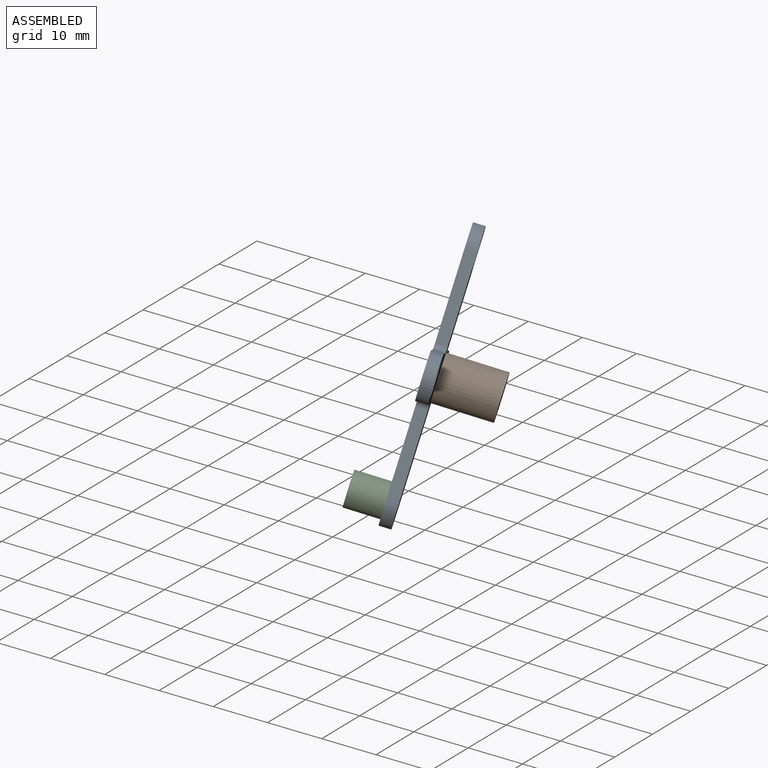
[diagram: assembled view]
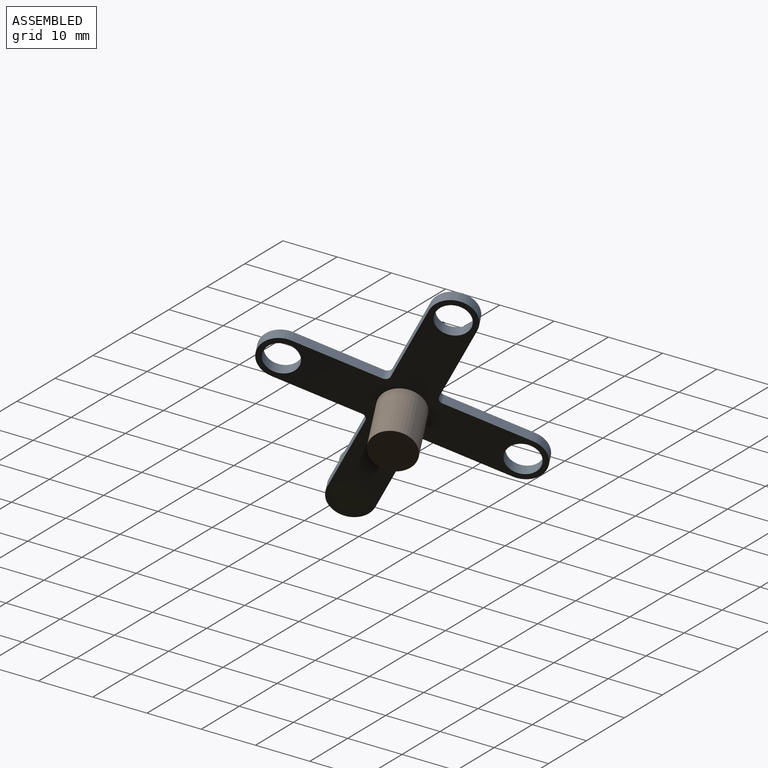
[diagram: assembled view, second angle]
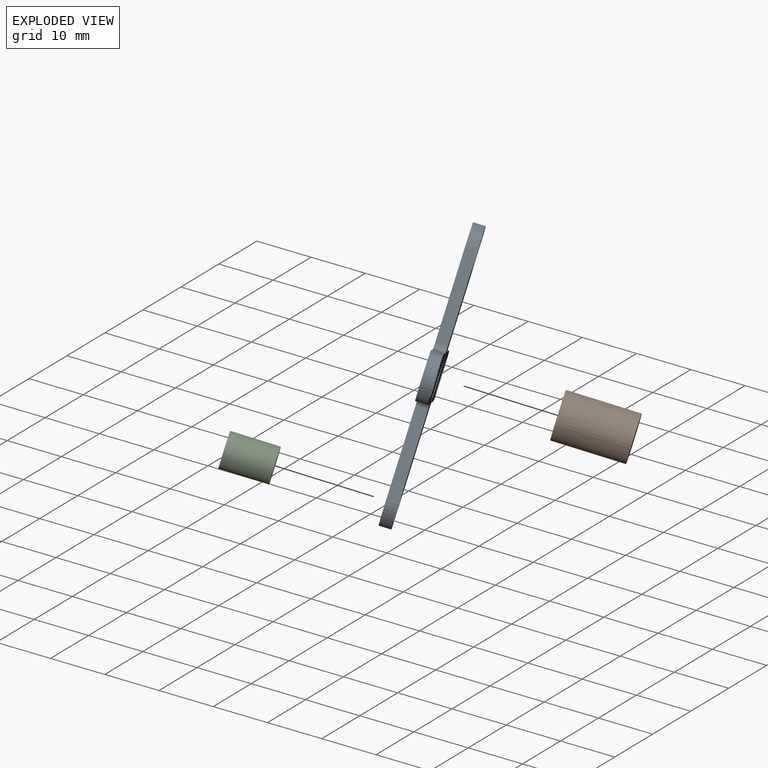
[diagram: exploded view]
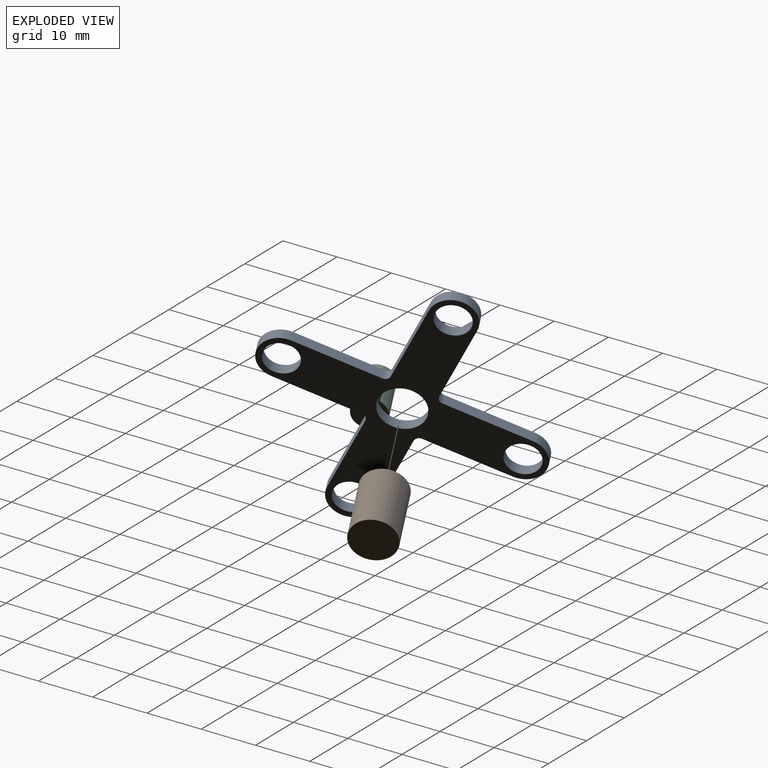
[diagram: exploded view, second angle]
ASSEMBLY  parts=3 mates=2
PART A: 23 faces, bbox 48x2x48 mm
  f0: plane 15x2mm, normal (1,0,0), area 30mm2, adj f1,f18,f21,f22
  f1: cylinder r=4mm len=8mm, axis (0,1,0), area 25.1mm2, adj f0,f2,f21,f22
  f2: plane 15x2mm, normal (-1,0,0), area 30mm2, adj f1,f3,f21,f22
  f3: cylinder r=1mm len=2mm, axis (0,1,0), area 3.1mm2, adj f2,f4,f21,f22
  f4: plane 15x2mm, normal (0,0,1), area 30mm2, adj f3,f5,f21,f22
  f5: cylinder r=4mm len=8mm, axis (0,1,0), area 25.1mm2, adj f4,f6,f21,f22
  f6: plane 15x2mm, normal (0,0,-1), area 30mm2, adj f5,f7,f21,f22
  f7: cylinder r=1mm len=2mm, axis (0,1,0), area 3.1mm2, adj f6,f8,f21,f22
  f8: plane 15x2mm, normal (-1,0,0), area 30mm2, adj f7,f9,f21,f22
  f9: cylinder r=4mm len=8mm, axis (0,1,0), area 25.1mm2, adj f8,f10,f21,f22
  f10: plane 15x2mm, normal (1,0,0), area 30mm2, adj f9,f11,f21,f22
  f11: cylinder r=1mm len=2mm, axis (0,1,0), area 3.1mm2, adj f10,f12,f21,f22
  f12: plane 15x2mm, normal (0,0,-1), area 30mm2, adj f11,f13,f21,f22
  f13: cylinder r=4mm len=8mm, axis (0,1,0), area 25.1mm2, adj f12,f14,f21,f22
  f14: plane 15x2mm, normal (0,0,1), area 30mm2, adj f13,f18,f21,f22
  f15: cylinder r=3mm len=5.99mm, axis (0,1,0), area 37.7mm2, adj f21,f22
  f16: cylinder r=3mm len=5.99mm, axis (0,1,0), area 37.7mm2, adj f21,f22
  f17: cylinder r=4mm len=8mm, axis (0,1,0), area 50.3mm2, adj f21,f22
  f18: cylinder r=1mm len=2mm, axis (0,1,0), area 3.1mm2, adj f0,f14,f21,f22
  f19: cylinder r=3mm len=6mm, axis (0,1,0), area 37.7mm2, adj f21,f22
  f20: cylinder r=3mm len=5.99mm, axis (0,1,0), area 37.7mm2, adj f21,f22
  f21: plane 48x48mm, normal (0,-1,0), area 514.2mm2, adj f0,f1,f2,f3,f4,f5,f6,f7
  f22: plane 48x48mm, normal (0,1,0), area 514.2mm2, adj f0,f1,f2,f3,f4,f5,f6,f7
PART B: 3 faces, bbox 8x12x8 mm
  f0: cylinder r=4mm len=12mm, axis (0,-1,0), area 301.6mm2, adj f1,f2
  f1: plane 8x8mm, normal (0,1,0), area 50.3mm2, adj f0
  f2: plane 8x8mm, normal (0,-1,0), area 50.3mm2, adj f0
PART C: 3 faces, bbox 6x8x6 mm
  f0: cylinder r=3mm len=8mm, axis (0,1,0), area 150.7mm2, adj f1,f2
  f1: plane 5.99x5.99mm, normal (0,-1,0), area 28.2mm2, adj f0
  f2: plane 5.99x5.99mm, normal (0,1,0), area 28.2mm2, adj f0
PLACE A rot(axis=(-0.41,-0.21,-0.89),66.1deg) t=(47.91,26.57,-7.98)mm
PLACE B rot(axis=(-0.41,-0.21,-0.89),66.1deg) t=(46.18,25.71,-7.45)mm
PLACE C rot(axis=(-0.41,-0.21,-0.89),66.1deg) t=(67.61,-33.72,-42.43)mm
MATE fastened C.f0 <-> A.f9  axis (0.86,0.43,-0.26) through (47.45,16.85,-25.45)mm
MATE fastened B.f0 <-> A.f17  axis (-0.86,-0.43,0.26) through (46.18,25.71,-7.45)mm
